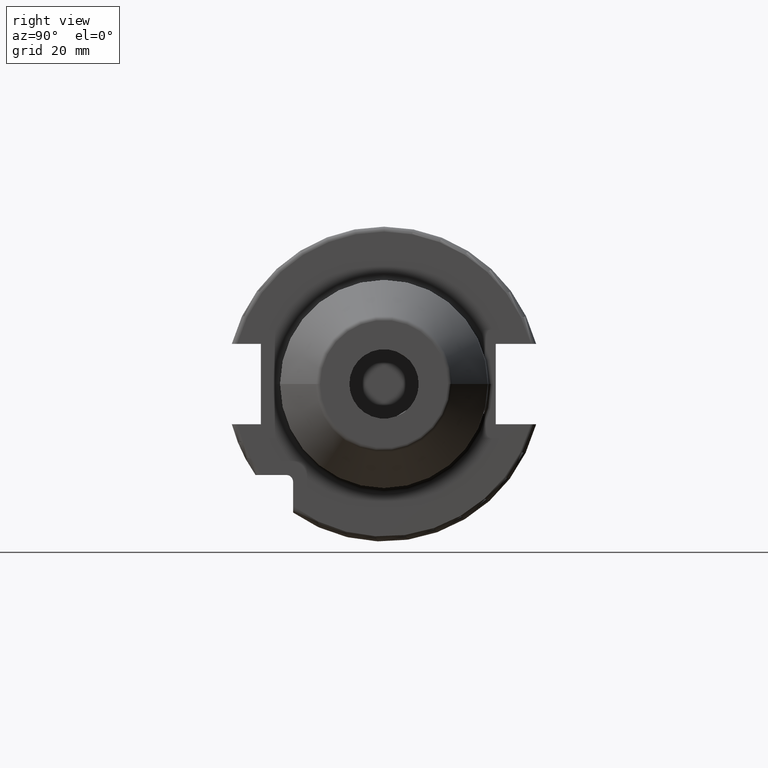
[diagram: clean part render]
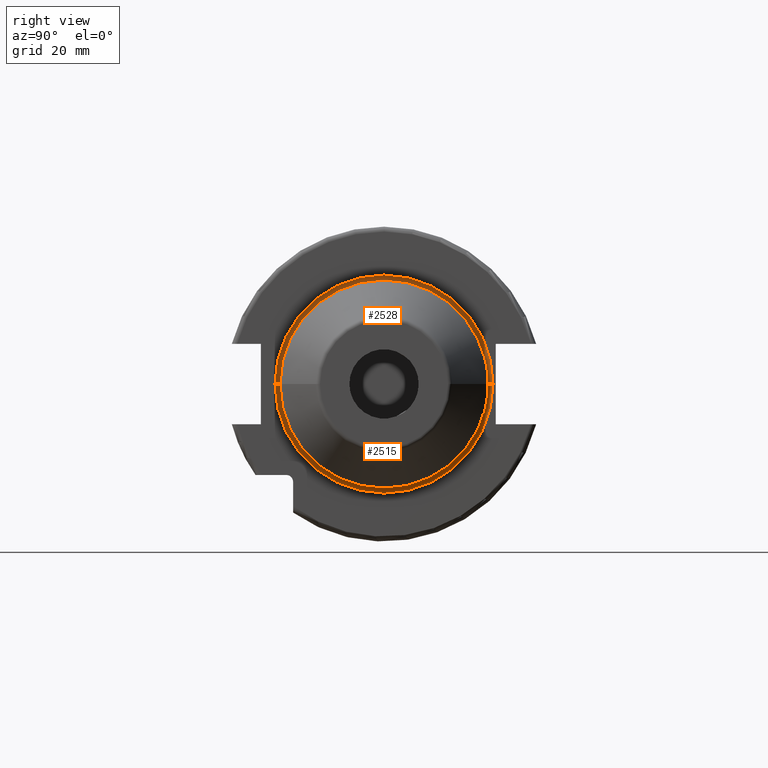
[diagram: same view with one multi-face feature highlighted, each face labeled with its STEP entity id]
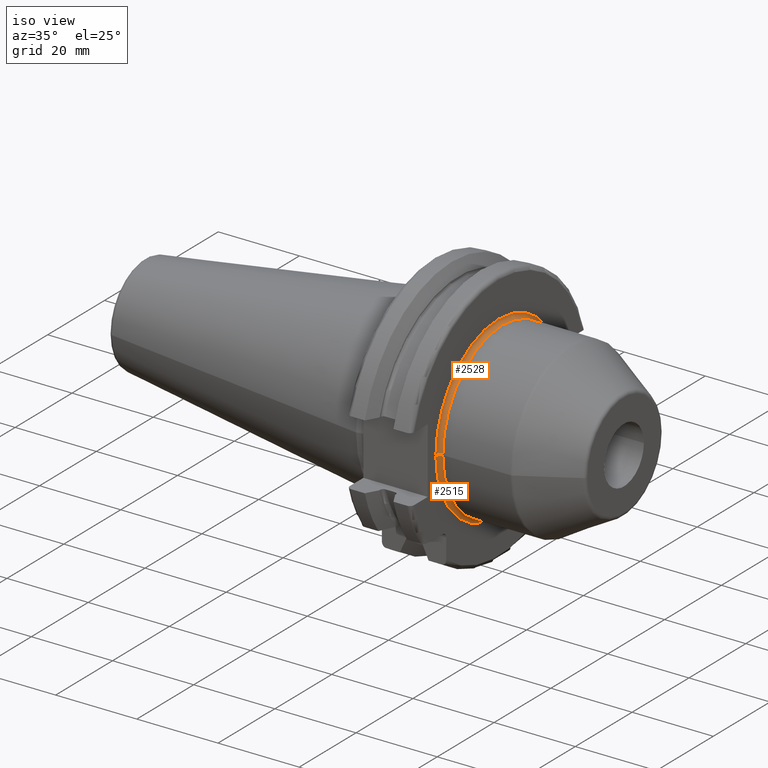
[diagram: same view with one multi-face feature highlighted, each face labeled with its STEP entity id]
A machine part, right view. The highlighted faces form ONE feature: a constant-radius fillet chain: 2 tangent blend faces with common blend radius 1 mm. The faces share edges in the B-rep.
A second angle (iso view) of the same feature is appended — it is thin or edge-on in the first view.
Their STEP definitions:
[1] entity #2528 (Torus):
#163=CARTESIAN_POINT('',(1.905E1,0.E0,0.E0));
#164=DIRECTION('',(1.E0,0.E0,0.E0));
#165=DIRECTION('',(0.E0,1.E0,0.E0));
#166=AXIS2_PLACEMENT_3D('',#163,#164,#165);
#898=CARTESIAN_POINT('',(2.005E1,-2.2E1,5.051514762044E-14));
#899=DIRECTION('',(0.E0,0.E0,-1.E0));
#900=DIRECTION('',(-1.E0,9.592326932761E-14,0.E0));
#901=AXIS2_PLACEMENT_3D('',#898,#899,#900);
#903=CARTESIAN_POINT('',(2.005E1,2.2E1,-5.373479439186E-14));
#904=DIRECTION('',(0.E0,0.E0,1.E0));
#905=DIRECTION('',(-1.E0,-8.881784197001E-14,0.E0));
#906=AXIS2_PLACEMENT_3D('',#903,#904,#905);
#934=CARTESIAN_POINT('',(2.005E1,0.E0,0.E0));
#935=DIRECTION('',(1.E0,0.E0,0.E0));
#936=DIRECTION('',(0.E0,1.E0,0.E0));
#937=AXIS2_PLACEMENT_3D('',#934,#935,#936);
#1559=CARTESIAN_POINT('',(1.905E1,-2.2E1,0.E0));
#1560=CARTESIAN_POINT('',(1.905E1,2.2E1,0.E0));
#1561=VERTEX_POINT('',#1559);
#1562=VERTEX_POINT('',#1560);
#1563=CARTESIAN_POINT('',(2.005E1,-2.1E1,0.E0));
#1564=CARTESIAN_POINT('',(2.005E1,2.1E1,0.E0));
#1565=VERTEX_POINT('',#1563);
#1566=VERTEX_POINT('',#1564);
#2516=CARTESIAN_POINT('',(2.005E1,0.E0,0.E0));
#2517=DIRECTION('',(1.E0,0.E0,0.E0));
#2518=DIRECTION('',(0.E0,9.999731921857E-1,-7.322220282677E-3));
#2519=AXIS2_PLACEMENT_3D('',#2516,#2517,#2518);
#2520=TOROIDAL_SURFACE('',#2519,2.2E1,1.E0);
#2521=ORIENTED_EDGE('',*,*,#1796,.F.);
#2522=ORIENTED_EDGE('',*,*,#2511,.T.);
#2524=ORIENTED_EDGE('',*,*,#2523,.T.);
#2525=ORIENTED_EDGE('',*,*,#2507,.F.);
#2526=EDGE_LOOP('',(#2521,#2522,#2524,#2525));
#2527=FACE_OUTER_BOUND('',#2526,.F.);
#2528=ADVANCED_FACE('',(#2527),#2520,.F.);
#167=CIRCLE('',#166,2.2E1);
#902=CIRCLE('',#901,1.E0);
#907=CIRCLE('',#906,1.E0);
#938=CIRCLE('',#937,2.1E1);
#1796=EDGE_CURVE('',#1562,#1561,#167,.T.);
#2507=EDGE_CURVE('',#1561,#1565,#902,.T.);
#2511=EDGE_CURVE('',#1562,#1566,#907,.T.);
#2523=EDGE_CURVE('',#1566,#1565,#938,.T.);
[2] entity #2515 (Torus):
#158=CARTESIAN_POINT('',(1.905E1,0.E0,0.E0));
#159=DIRECTION('',(1.E0,0.E0,0.E0));
#160=DIRECTION('',(0.E0,-1.E0,0.E0));
#161=AXIS2_PLACEMENT_3D('',#158,#159,#160);
#898=CARTESIAN_POINT('',(2.005E1,-2.2E1,5.051514762044E-14));
#899=DIRECTION('',(0.E0,0.E0,-1.E0));
#900=DIRECTION('',(-1.E0,9.592326932761E-14,0.E0));
#901=AXIS2_PLACEMENT_3D('',#898,#899,#900);
#903=CARTESIAN_POINT('',(2.005E1,2.2E1,-5.373479439186E-14));
#904=DIRECTION('',(0.E0,0.E0,1.E0));
#905=DIRECTION('',(-1.E0,-8.881784197001E-14,0.E0));
#906=AXIS2_PLACEMENT_3D('',#903,#904,#905);
#972=CARTESIAN_POINT('',(2.005E1,0.E0,0.E0));
#973=DIRECTION('',(1.E0,0.E0,0.E0));
#974=DIRECTION('',(0.E0,-1.E0,0.E0));
#975=AXIS2_PLACEMENT_3D('',#972,#973,#974);
#1559=CARTESIAN_POINT('',(1.905E1,-2.2E1,0.E0));
#1560=CARTESIAN_POINT('',(1.905E1,2.2E1,0.E0));
#1561=VERTEX_POINT('',#1559);
#1562=VERTEX_POINT('',#1560);
#1563=CARTESIAN_POINT('',(2.005E1,-2.1E1,0.E0));
#1564=CARTESIAN_POINT('',(2.005E1,2.1E1,0.E0));
#1565=VERTEX_POINT('',#1563);
#1566=VERTEX_POINT('',#1564);
#2501=CARTESIAN_POINT('',(2.005E1,0.E0,0.E0));
#2502=DIRECTION('',(1.E0,0.E0,0.E0));
#2503=DIRECTION('',(0.E0,-9.999731921857E-1,7.322220282676E-3));
#2504=AXIS2_PLACEMENT_3D('',#2501,#2502,#2503);
#2505=TOROIDAL_SURFACE('',#2504,2.2E1,1.E0);
#2506=ORIENTED_EDGE('',*,*,#1794,.F.);
#2508=ORIENTED_EDGE('',*,*,#2507,.T.);
#2510=ORIENTED_EDGE('',*,*,#2509,.T.);
#2512=ORIENTED_EDGE('',*,*,#2511,.F.);
#2513=EDGE_LOOP('',(#2506,#2508,#2510,#2512));
#2514=FACE_OUTER_BOUND('',#2513,.F.);
#2515=ADVANCED_FACE('',(#2514),#2505,.F.);
#162=CIRCLE('',#161,2.2E1);
#902=CIRCLE('',#901,1.E0);
#907=CIRCLE('',#906,1.E0);
#976=CIRCLE('',#975,2.1E1);
#1794=EDGE_CURVE('',#1561,#1562,#162,.T.);
#2507=EDGE_CURVE('',#1561,#1565,#902,.T.);
#2509=EDGE_CURVE('',#1565,#1566,#976,.T.);
#2511=EDGE_CURVE('',#1562,#1566,#907,.T.);